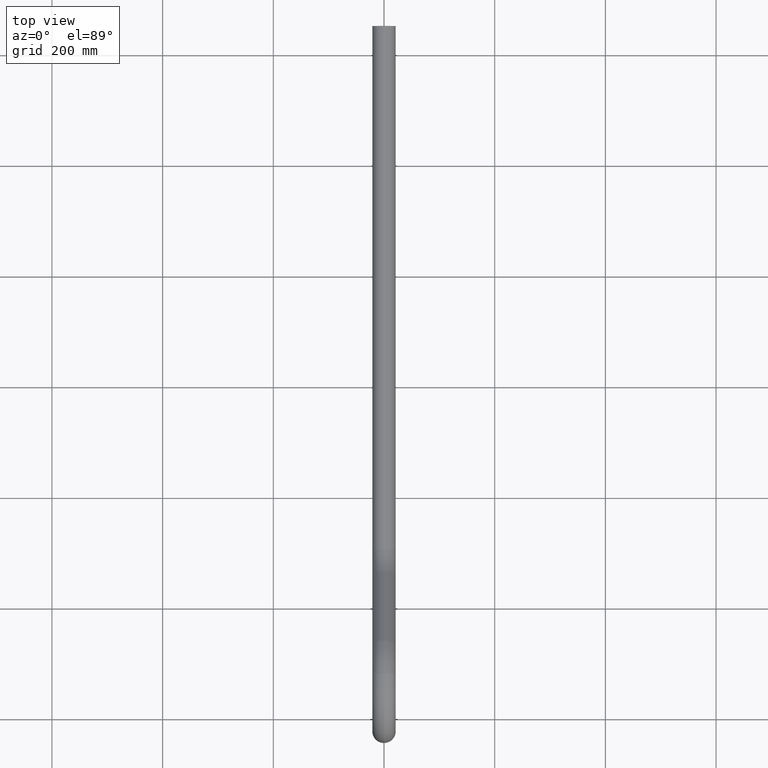
[diagram: clean part render]
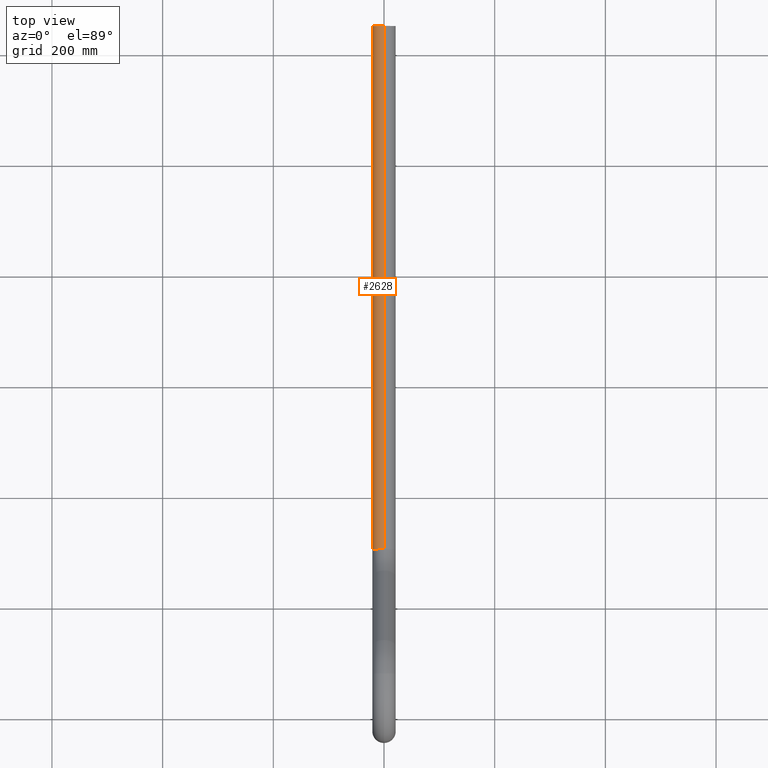
[diagram: same view with one face highlighted and labeled with its STEP entity id]
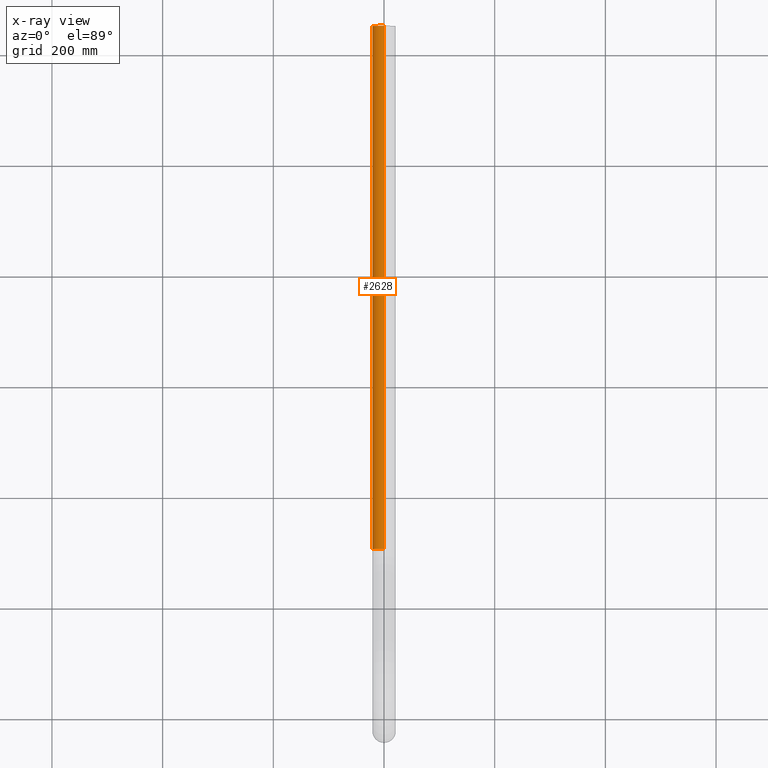
[diagram: x-ray of the same camera — body ghosted, the highlighted face saturated]
A machine part, top view. The second image highlights one B-rep face of the part: STEP entity #2628.
The next image is the same camera in x-ray: the body ghosted, the highlighted face saturated — about 0% of this face is hidden behind the body in this view.
In plain terms, the highlighted cylindrical surface (edge-blend (fillet) strip) has radius 21.2 mm, axis along (0, 1, 0).
Its self-contained STEP definition (entity closure, byte-faithful):
#142 = CARTESIAN_POINT ( 'NONE',  ( 0.0000000000000000000, 305.5949192431106700, 95.59999999999999400 ) ) ;
#589 = EDGE_CURVE ( 'NONE', #7907, #5831, #8986, .T. ) ;
#1345 = DIRECTION ( 'NONE',  ( 1.000000000000000000, 0.0000000000000000000, 0.0000000000000000000 ) ) ;
#1551 = CARTESIAN_POINT ( 'NONE',  ( 0.0000000000000000000, 1250.589999999998100, 74.40000000000003400 ) ) ;
#2053 = CARTESIAN_POINT ( 'NONE',  ( 2.596251214192388800E-015, 305.5949192431106700, 53.19999999999999600 ) ) ;
#2225 = ORIENTED_EDGE ( 'NONE', *, *, #9962, .T. ) ;
#2234 = DIRECTION ( 'NONE',  ( 0.0000000000000000000, 1.000000000000000000, 0.0000000000000000000 ) ) ;
#2401 = DIRECTION ( 'NONE',  ( 1.000000000000000000, 0.0000000000000000000, 0.0000000000000000000 ) ) ;
#2512 = CARTESIAN_POINT ( 'NONE',  ( 0.0000000000000000000, 305.5949192431106700, 74.39999999999999100 ) ) ;
#2616 = CARTESIAN_POINT ( 'NONE',  ( 2.596251214192389200E-015, 1250.589999999998100, 53.20000000000003800 ) ) ;
#2628 = ADVANCED_FACE ( 'NONE', ( #3068 ), #9379, .T. ) ;
#2889 = AXIS2_PLACEMENT_3D ( 'NONE', #1551, #5019, #2401 ) ;
#3067 = ORIENTED_EDGE ( 'NONE', *, *, #3956, .F. ) ;
#3068 = FACE_OUTER_BOUND ( 'NONE', #5779, .T. ) ;
#3462 = VECTOR ( 'NONE', #9393, 1000.000000000000000 ) ;
#3757 = DIRECTION ( 'NONE',  ( 0.0000000000000000000, 1.000000000000000000, 4.405669857042791700E-017 ) ) ;
#3868 = EDGE_CURVE ( 'NONE', #7907, #6833, #7024, .T. ) ;
#3956 = EDGE_CURVE ( 'NONE', #6833, #5764, #4977, .T. ) ;
#4931 = CARTESIAN_POINT ( 'NONE',  ( 0.0000000000000000000, 305.5949192431106700, 74.39999999999999100 ) ) ;
#4941 = AXIS2_PLACEMENT_3D ( 'NONE', #4931, #2234, #1345 ) ;
#4977 = CIRCLE ( 'NONE', #2889, 21.19999999999999600 ) ;
#5019 = DIRECTION ( 'NONE',  ( 0.0000000000000000000, 1.000000000000000000, 0.0000000000000000000 ) ) ;
#5764 = VERTEX_POINT ( 'NONE', #8929 ) ;
#5779 = EDGE_LOOP ( 'NONE', ( #8061, #9826, #2225, #3067 ) ) ;
#5809 = CARTESIAN_POINT ( 'NONE',  ( 0.0000000000000000000, 305.5949192431106700, 95.59999999999999400 ) ) ;
#5831 = VERTEX_POINT ( 'NONE', #142 ) ;
#6833 = VERTEX_POINT ( 'NONE', #2616 ) ;
#6903 = DIRECTION ( 'NONE',  ( 0.0000000000000000000, 0.0000000000000000000, 1.000000000000000000 ) ) ;
#7024 = LINE ( 'NONE', #2053, #7305 ) ;
#7305 = VECTOR ( 'NONE', #3757, 1000.000000000000000 ) ;
#7664 = CARTESIAN_POINT ( 'NONE',  ( 2.596251214192391500E-015, 305.5949192431106700, 53.19999999999999600 ) ) ;
#7907 = VERTEX_POINT ( 'NONE', #7664 ) ;
#8061 = ORIENTED_EDGE ( 'NONE', *, *, #3868, .F. ) ;
#8317 = AXIS2_PLACEMENT_3D ( 'NONE', #2512, #9500, #6903 ) ;
#8929 = CARTESIAN_POINT ( 'NONE',  ( 0.0000000000000000000, 1250.589999999998100, 95.60000000000003700 ) ) ;
#8986 = CIRCLE ( 'NONE', #4941, 21.19999999999999600 ) ;
#9379 = CYLINDRICAL_SURFACE ( 'NONE', #8317, 21.19999999999999600 ) ;
#9393 = DIRECTION ( 'NONE',  ( 0.0000000000000000000, 1.000000000000000000, 4.405669857042791700E-017 ) ) ;
#9500 = DIRECTION ( 'NONE',  ( 0.0000000000000000000, 1.000000000000000000, 4.405669857042791700E-017 ) ) ;
#9826 = ORIENTED_EDGE ( 'NONE', *, *, #589, .T. ) ;
#9962 = EDGE_CURVE ( 'NONE', #5831, #5764, #10848, .T. ) ;
#10848 = LINE ( 'NONE', #5809, #3462 ) ;